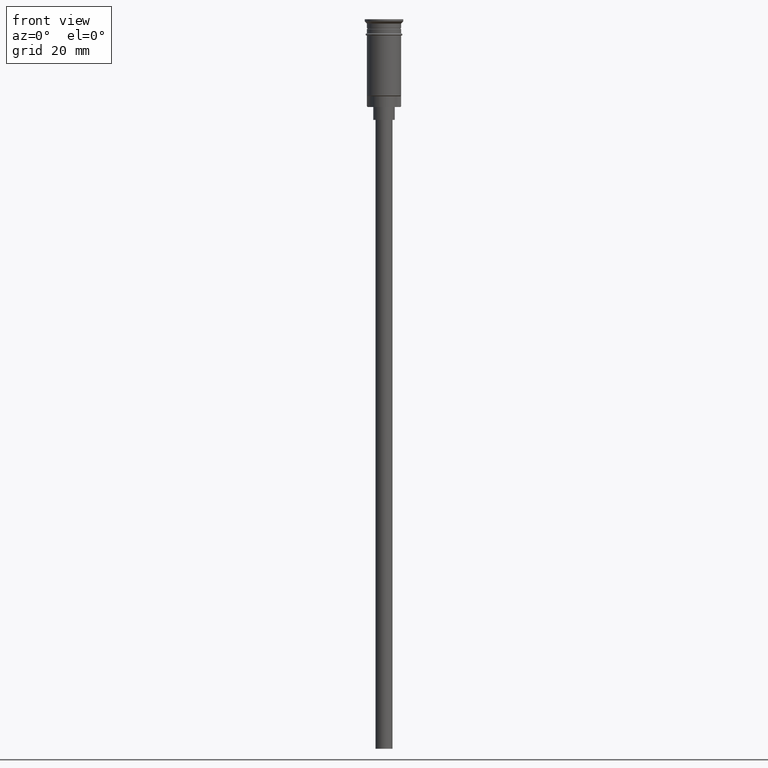
[diagram: clean part render]
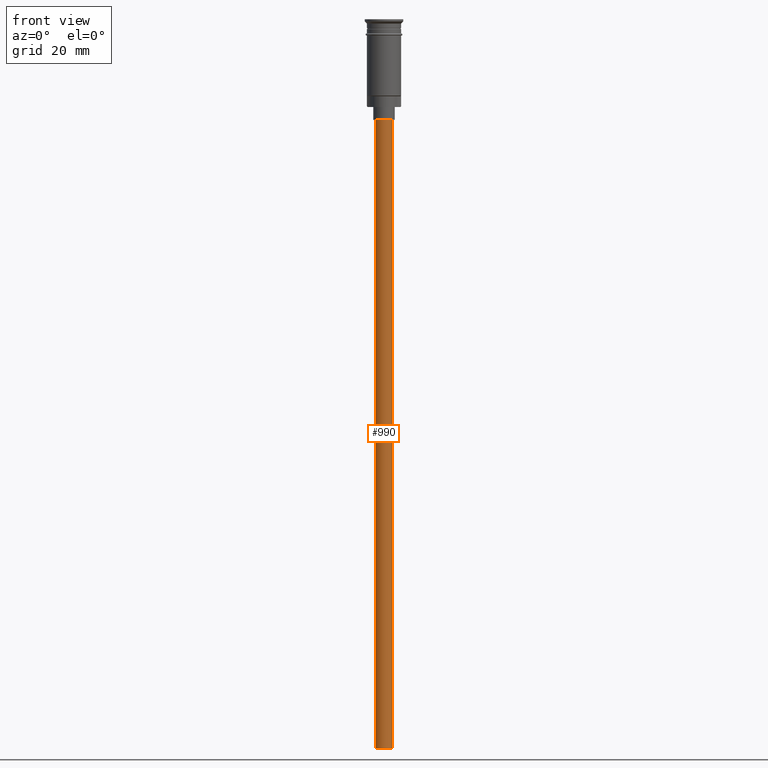
[diagram: same view with one face highlighted and labeled with its STEP entity id]
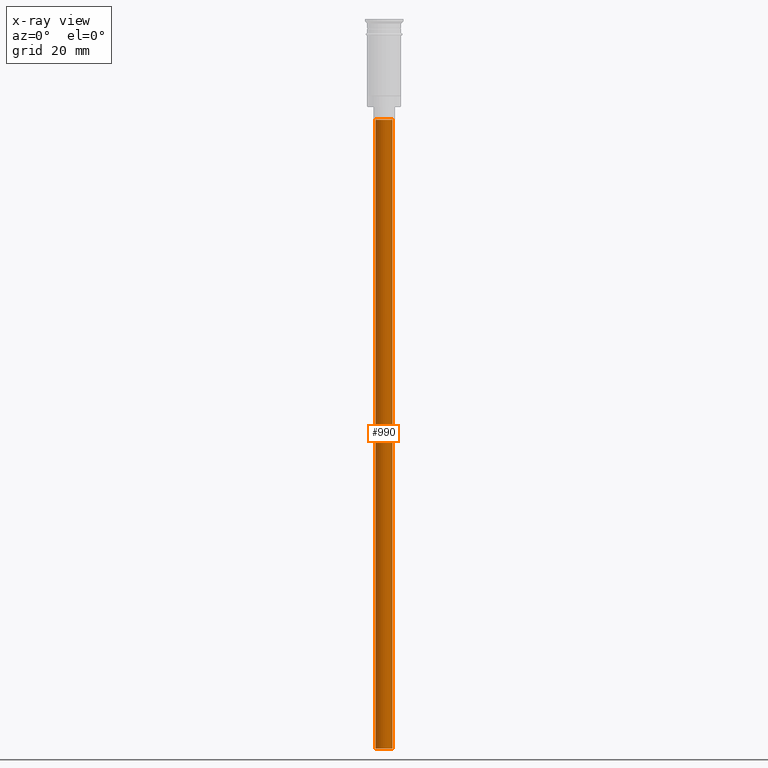
[diagram: x-ray of the same camera — body ghosted, the highlighted face saturated]
A machine part, front view. The second image highlights one B-rep face of the part: STEP entity #990.
The next image is the same camera in x-ray: the body ghosted, the highlighted face saturated — about 0% of this face is hidden behind the body in this view.
In plain terms, the highlighted cylindrical surface (edge-blend (fillet) strip) has radius 2 mm, axis along (-0, -0, 1).
Its self-contained STEP definition (entity closure, byte-faithful):
#50 = CARTESIAN_POINT ( 'NONE',  ( 0.000000000000000000, 0.000000000000000000, -23.49999999999999645 ) ) ;
#190 = VERTEX_POINT ( 'NONE', #832 ) ;
#206 = CARTESIAN_POINT ( 'NONE',  ( 2.000000000000000000, 0.000000000000000000, -170.4999999999999716 ) ) ;
#216 = DIRECTION ( 'NONE',  ( -0.000000000000000000, -0.000000000000000000, 1.000000000000000000 ) ) ;
#230 = AXIS2_PLACEMENT_3D ( 'NONE', #50, #255, #1256 ) ;
#255 = DIRECTION ( 'NONE',  ( 0.000000000000000000, 0.000000000000000000, -1.000000000000000000 ) ) ;
#297 = DIRECTION ( 'NONE',  ( 1.000000000000000000, 0.000000000000000000, 0.000000000000000000 ) ) ;
#305 = CARTESIAN_POINT ( 'NONE',  ( -2.000000000000000000, 2.449293598294706414E-16, -23.49999999999999645 ) ) ;
#326 = VERTEX_POINT ( 'NONE', #305 ) ;
#359 = AXIS2_PLACEMENT_3D ( 'NONE', #1257, #1021, #494 ) ;
#452 = DIRECTION ( 'NONE',  ( -0.000000000000000000, -0.000000000000000000, 1.000000000000000000 ) ) ;
#471 = CARTESIAN_POINT ( 'NONE',  ( -2.000000000000000000, 2.449293598294706414E-16, -170.4999999999999716 ) ) ;
#494 = DIRECTION ( 'NONE',  ( -1.000000000000000000, 0.000000000000000000, 0.000000000000000000 ) ) ;
#609 = VERTEX_POINT ( 'NONE', #1317 ) ;
#704 = CARTESIAN_POINT ( 'NONE',  ( 2.000000000000000000, 0.000000000000000000, -23.49999999999999645 ) ) ;
#719 = VERTEX_POINT ( 'NONE', #704 ) ;
#792 = EDGE_CURVE ( 'NONE', #609, #719, #1060, .T. ) ;
#812 = ORIENTED_EDGE ( 'NONE', *, *, #792, .T. ) ;
#827 = VECTOR ( 'NONE', #216, 1000.000000000000000 ) ;
#832 = CARTESIAN_POINT ( 'NONE',  ( -2.000000000000000000, 2.449293598294706414E-16, -170.4999999999999716 ) ) ;
#891 = EDGE_CURVE ( 'NONE', #719, #326, #1587, .T. ) ;
#988 = ORIENTED_EDGE ( 'NONE', *, *, #1190, .F. ) ;
#990 = ADVANCED_FACE ( 'NONE', ( #1542 ), #1034, .T. ) ;
#1021 = DIRECTION ( 'NONE',  ( 0.000000000000000000, 0.000000000000000000, -1.000000000000000000 ) ) ;
#1034 = CYLINDRICAL_SURFACE ( 'NONE', #1347, 2.000000000000000000 ) ;
#1060 = LINE ( 'NONE', #206, #1245 ) ;
#1061 = DIRECTION ( 'NONE',  ( -0.000000000000000000, -0.000000000000000000, 1.000000000000000000 ) ) ;
#1190 = EDGE_CURVE ( 'NONE', #190, #326, #1216, .T. ) ;
#1216 = LINE ( 'NONE', #471, #827 ) ;
#1223 = CIRCLE ( 'NONE', #359, 2.000000000000000000 ) ;
#1233 = EDGE_LOOP ( 'NONE', ( #988, #1300, #812, #1555 ) ) ;
#1245 = VECTOR ( 'NONE', #452, 1000.000000000000000 ) ;
#1256 = DIRECTION ( 'NONE',  ( -1.000000000000000000, 0.000000000000000000, 0.000000000000000000 ) ) ;
#1257 = CARTESIAN_POINT ( 'NONE',  ( 0.000000000000000000, 0.000000000000000000, -170.4999999999999716 ) ) ;
#1300 = ORIENTED_EDGE ( 'NONE', *, *, #1373, .F. ) ;
#1317 = CARTESIAN_POINT ( 'NONE',  ( 2.000000000000000000, 0.000000000000000000, -170.4999999999999716 ) ) ;
#1347 = AXIS2_PLACEMENT_3D ( 'NONE', #1559, #1061, #297 ) ;
#1373 = EDGE_CURVE ( 'NONE', #609, #190, #1223, .T. ) ;
#1542 = FACE_OUTER_BOUND ( 'NONE', #1233, .T. ) ;
#1555 = ORIENTED_EDGE ( 'NONE', *, *, #891, .T. ) ;
#1559 = CARTESIAN_POINT ( 'NONE',  ( 0.000000000000000000, 0.000000000000000000, -170.4999999999999716 ) ) ;
#1587 = CIRCLE ( 'NONE', #230, 2.000000000000000000 ) ;